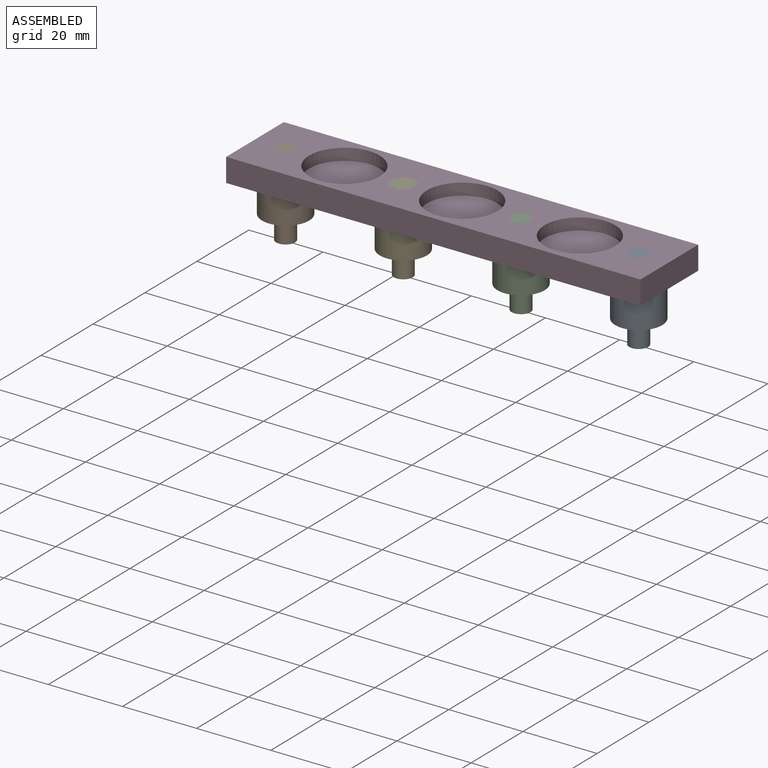
[diagram: assembled view]
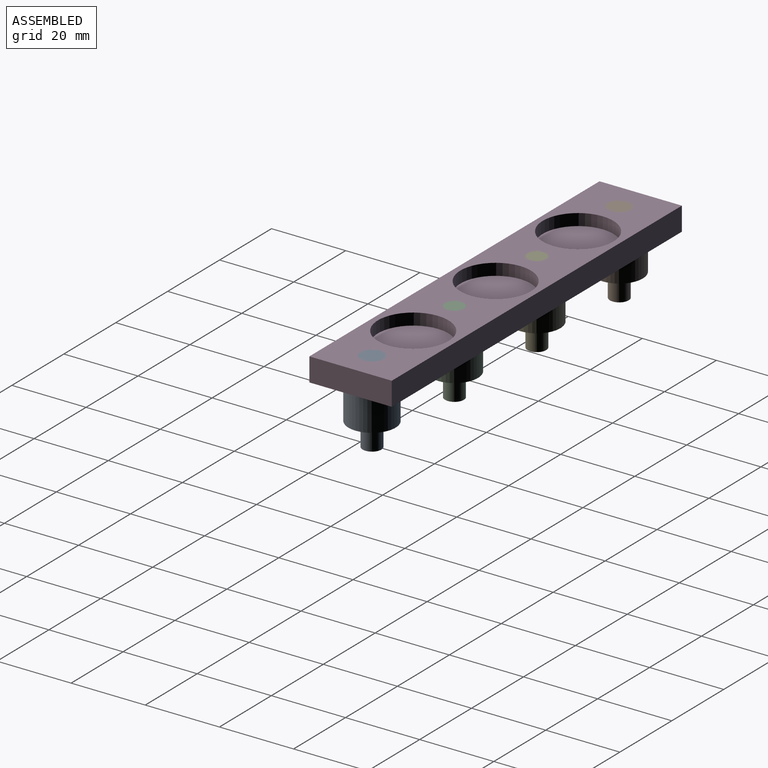
[diagram: assembled view, second angle]
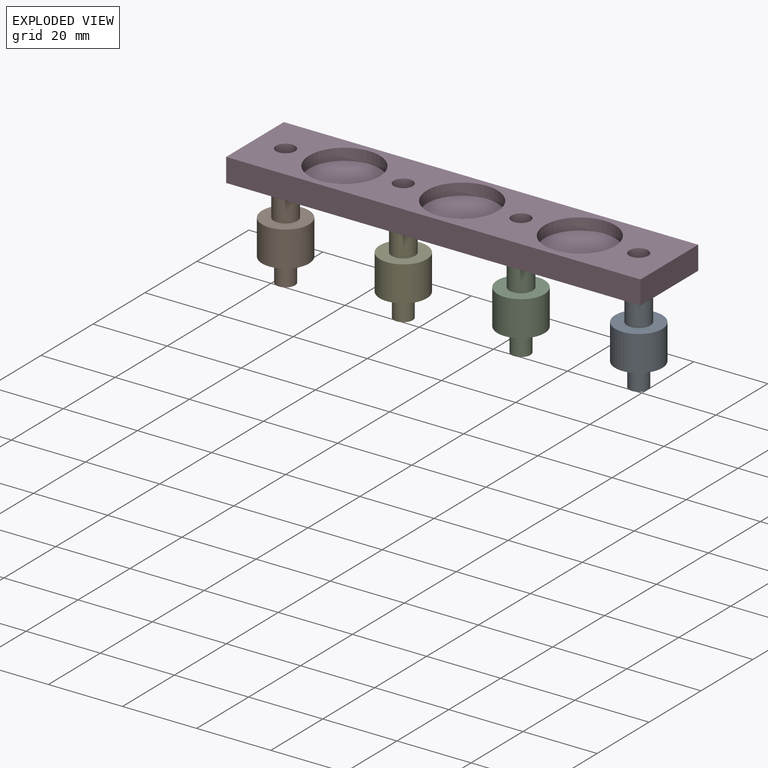
[diagram: exploded view]
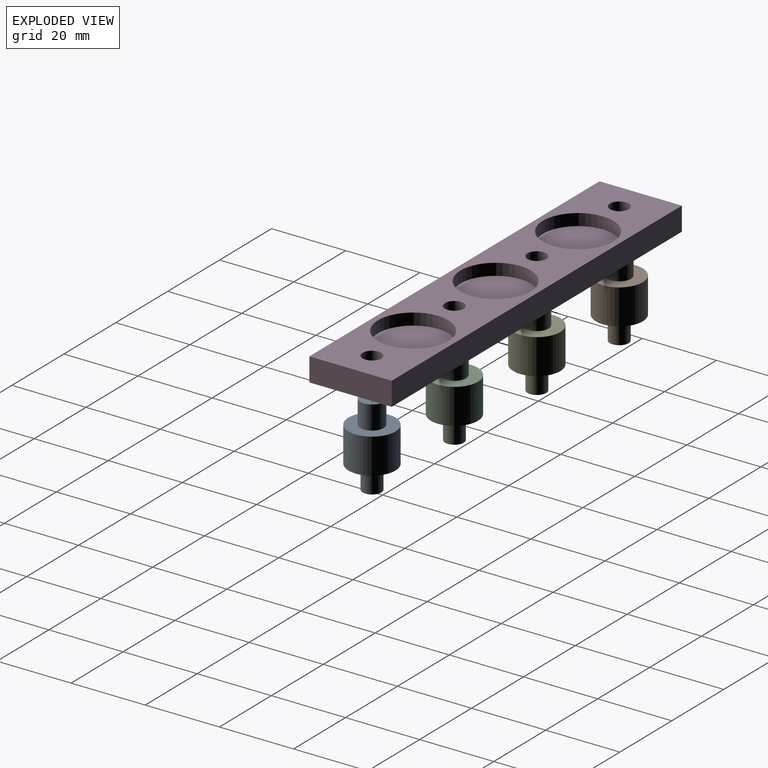
[diagram: exploded view, second angle]
ASSEMBLY  parts=5 mates=4
PART A: 7 faces, bbox 12.7x12.7x22.2 mm
  f0: cylinder r=6.35mm len=12.7mm, axis (0,0,1), area 380mm2, adj f1,f2
  f1: plane 12.7x12.7mm, normal (0,0,-1), area 106.4mm2, adj f0,f3
  f2: plane 12.7x12.7mm, normal (0,0,1), area 95mm2, adj f0,f5
  f3: cylinder r=2.54mm len=6.35mm, axis (0,0,1), area 101.3mm2, adj f1,f4
  f4: plane 5.08x5.08mm, normal (0,0,-1), area 20.3mm2, adj f3
  f5: cylinder r=3.17mm len=6.35mm, axis (0,0,-1), area 126.7mm2, adj f2,f6
  f6: plane 6.35x6.35mm, normal (0,0,1), area 31.7mm2, adj f5
PART B: same geometry as A
PART C: same geometry as A
PART D: 16 faces, bbox 111.8x22.2x6.4 mm
  f0: plane 111.76x6.35mm, normal (0,1,0), area 709.7mm2, adj f1,f3,f4,f5
  f1: plane 22.23x6.35mm, normal (-1,0,0), area 141.1mm2, adj f0,f2,f4,f5
  f2: plane 111.76x6.35mm, normal (0,-1,0), area 709.7mm2, adj f1,f3,f4,f5
  f3: plane 22.23x6.35mm, normal (1,0,0), area 141.1mm2, adj f0,f2,f4,f5
  f4: plane 111.76x22.23mm, normal (0,0,1), area 1546.9mm2, adj f0,f1,f2,f3,f6,f7,f8,f9
  f5: plane 111.76x22.23mm, normal (0,0,-1), area 2402mm2, adj f0,f1,f2,f3,f6,f7,f8,f9
  f6: cylinder r=2.55mm len=6.35mm, axis (0,0,-1), area 101.8mm2, adj f4,f5
  f7: cylinder r=2.55mm len=6.35mm, axis (0,0,-1), area 101.8mm2, adj f4,f5
  f8: cylinder r=2.55mm len=6.35mm, axis (0,0,-1), area 101.8mm2, adj f4,f5
  f9: cylinder r=2.55mm len=6.35mm, axis (0,0,-1), area 101.8mm2, adj f4,f5
  f10: cylinder r=9.53mm len=19.05mm, axis (0,0,1), area 190mm2, adj f4,f11
  f11: plane 19.05x19.05mm, normal (0,0,1), area 285mm2, adj f10
  f12: cylinder r=9.53mm len=19.05mm, axis (0,0,1), area 190mm2, adj f4,f13
  f13: plane 19.05x19.05mm, normal (0,0,1), area 285mm2, adj f12
  f14: cylinder r=9.53mm len=19.05mm, axis (0,0,1), area 190mm2, adj f4,f15
  f15: plane 19.05x19.05mm, normal (0,0,1), area 285mm2, adj f14
PART E: same geometry as A
PLACE A t=(95.25,0,0)mm
PLACE B at identity
PLACE C t=(63.5,0,0)mm
PLACE D at identity fixed
PLACE E t=(31.75,0,0)mm
MATE fastened A.f5 <-> D.f6  axis (0,0,1) through (161.21,0,28.58)mm
MATE fastened E.f5 <-> D.f8  axis (0,0,1) through (97.71,0,28.58)mm
MATE fastened B.f5 <-> D.f9  axis (0,0,1) through (65.96,0,28.58)mm
MATE fastened D.f7 <-> C.f0  axis (0,0,-1) through (129.46,0,28.58)mm
